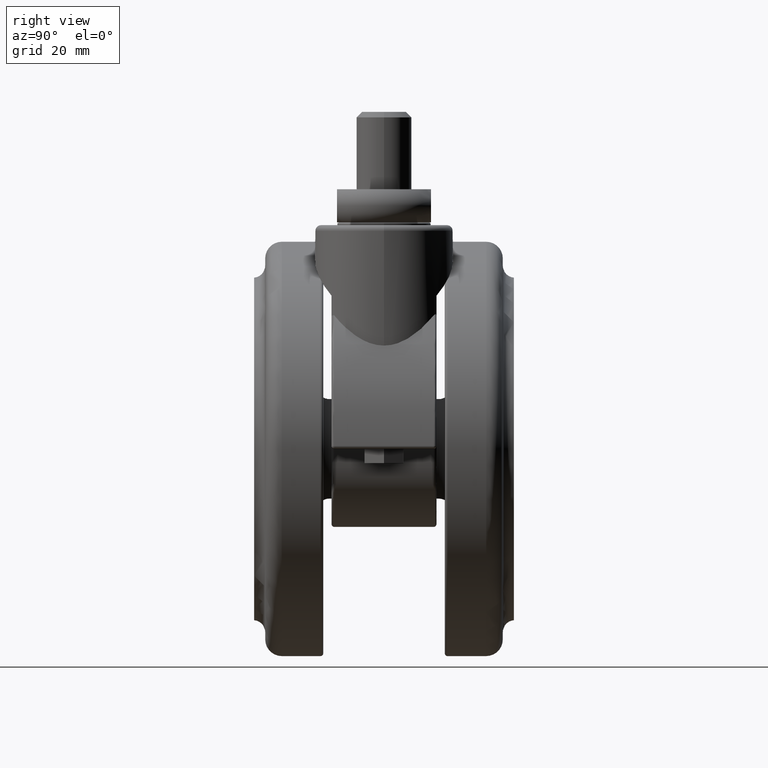
[diagram: clean part render]
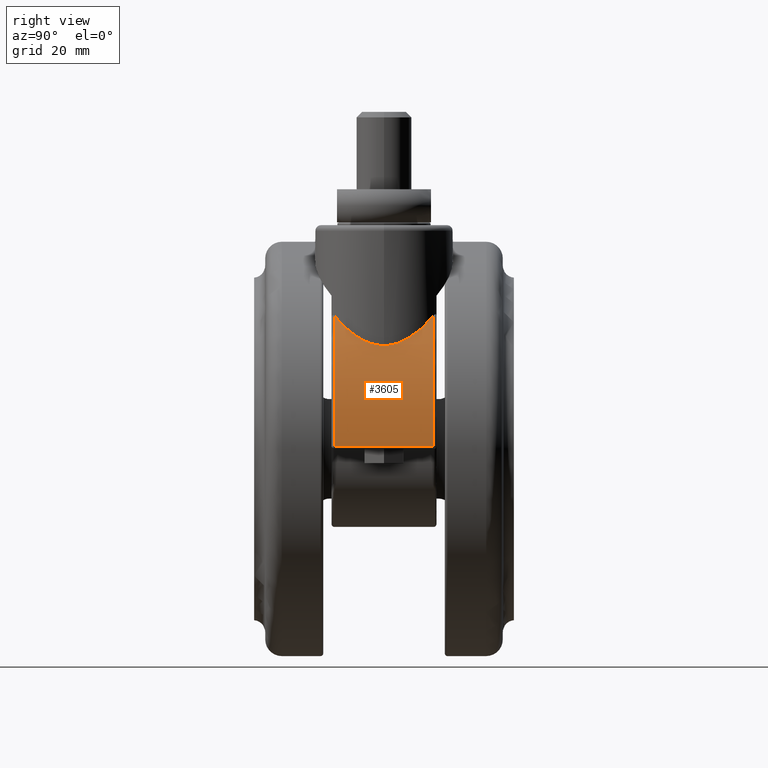
[diagram: same view with one face highlighted and labeled with its STEP entity id]
A machine part, right view. The second image highlights one B-rep face of the part: STEP entity #3605.
In plain terms, the highlighted cylindrical surface (partial cylindrical patch) has radius 37.5 mm, axis along (0, -1, 0).
Its self-contained STEP definition (entity closure, byte-faithful):
#77 = CARTESIAN_POINT ( 'NONE',  ( 12.47170636205235200, -0.9669715312654131300, -21.74232653867441600 ) ) ;
#115 = EDGE_LOOP ( 'NONE', ( #2586, #2071, #2783, #1373, #2355 ) ) ;
#127 = CARTESIAN_POINT ( 'NONE',  ( 12.06706085901649100, 3.268917303096076300, -21.05860501067672200 ) ) ;
#188 = VECTOR ( 'NONE', #1237, 1000.000000000000000 ) ;
#198 = CARTESIAN_POINT ( 'NONE',  ( -20.00000000000045100, -8.999999999999799300, -40.50000000000000000 ) ) ;
#213 = CARTESIAN_POINT ( 'NONE',  ( 12.50000000000000000, 2.842170947381347100E-014, -21.79171306613108400 ) ) ;
#316 = CARTESIAN_POINT ( 'NONE',  ( -20.00000000000045100, 0.0000000000000000000, -40.50000000000000000 ) ) ;
#321 = DIRECTION ( 'NONE',  ( 0.0000000000000000000, -1.000000000000000000, 0.0000000000000000000 ) ) ;
#435 = CARTESIAN_POINT ( 'NONE',  ( 12.27913679572494500, 2.383377241040031300, -21.41210837538315900 ) ) ;
#512 = DIRECTION ( 'NONE',  ( 0.0000000000000000000, 0.0000000000000000000, 1.000000000000000000 ) ) ;
#666 = CARTESIAN_POINT ( 'NONE',  ( 12.50000000000000500, -0.4865225008004295800, -21.79171306613108100 ) ) ;
#684 = CIRCLE ( 'NONE', #997, 37.50000000000000000 ) ;
#740 = CARTESIAN_POINT ( 'NONE',  ( 9.693335200543497600, 7.928650109869027900, -17.58469960106188900 ) ) ;
#754 = CARTESIAN_POINT ( 'NONE',  ( 12.44270331392383300, 1.218844239083871800, -21.69244763117875200 ) ) ;
#997 = AXIS2_PLACEMENT_3D ( 'NONE', #3694, #321, #1856 ) ;
#1044 = EDGE_CURVE ( 'NONE', #1609, #2469, #2871, .T. ) ;
#1047 = CARTESIAN_POINT ( 'NONE',  ( 10.56919829323567600, 6.685521131039008600, -18.77683862324972400 ) ) ;
#1058 = CARTESIAN_POINT ( 'NONE',  ( 12.49275083293316000, 0.4908738781111888800, -21.77910337829950300 ) ) ;
#1152 = CIRCLE ( 'NONE', #1523, 37.50000000000000000 ) ;
#1225 = CARTESIAN_POINT ( 'NONE',  ( 17.49657581152500200, 0.0000000000000000000, -39.99324324324324900 ) ) ;
#1237 = DIRECTION ( 'NONE',  ( -0.0000000000000000000, 1.000000000000000000, -0.0000000000000000000 ) ) ;
#1248 = CARTESIAN_POINT ( 'NONE',  ( 9.688413340939423100, -7.907281397438835800, -17.58700524540147500 ) ) ;
#1345 = CARTESIAN_POINT ( 'NONE',  ( 11.15680287006490600, 5.652002966968137100, -19.62887929108427400 ) ) ;
#1357 = CARTESIAN_POINT ( 'NONE',  ( 12.50000000000000000, 2.842170947381347100E-014, -21.79171306613108400 ) ) ;
#1373 = ORIENTED_EDGE ( 'NONE', *, *, #1044, .T. ) ;
#1523 = AXIS2_PLACEMENT_3D ( 'NONE', #198, #2330, #512 ) ;
#1609 = VERTEX_POINT ( 'NONE', #213 ) ;
#1649 = CARTESIAN_POINT ( 'NONE',  ( 11.66310253438532000, 4.517558238409294300, -20.40597867463136700 ) ) ;
#1709 = EDGE_CURVE ( 'NONE', #3878, #1933, #684, .T. ) ;
#1856 = DIRECTION ( 'NONE',  ( 0.0000000000000000000, 0.0000000000000000000, -1.000000000000000000 ) ) ;
#1903 = CARTESIAN_POINT ( 'NONE',  ( 8.941298948947228100, -8.743014500907511500, -16.65000234050980800 ) ) ;
#1933 = VERTEX_POINT ( 'NONE', #2515 ) ;
#1937 = CARTESIAN_POINT ( 'NONE',  ( 8.674675786448510500, 9.000000000000248700, -16.33363973325659700 ) ) ;
#1952 = CARTESIAN_POINT ( 'NONE',  ( 11.94271927923521800, 3.697463228630165000, -20.85497731447666000 ) ) ;
#2071 = ORIENTED_EDGE ( 'NONE', *, *, #1709, .T. ) ;
#2124 = CARTESIAN_POINT ( 'NONE',  ( 9.197291858723501100, -8.473504270880711800, -16.96438096324535000 ) ) ;
#2198 = EDGE_CURVE ( 'NONE', #3486, #3878, #3450, .T. ) ;
#2217 = AXIS2_PLACEMENT_3D ( 'NONE', #316, #3084, #3383 ) ;
#2250 = CARTESIAN_POINT ( 'NONE',  ( 9.206450369600597500, 8.487447544409350900, -16.96461864754277800 ) ) ;
#2263 = CARTESIAN_POINT ( 'NONE',  ( 12.12451971149622700, 3.049252965210984100, -21.15380391283007100 ) ) ;
#2330 = DIRECTION ( 'NONE',  ( 0.0000000000000000000, 1.000000000000000000, 0.0000000000000000000 ) ) ;
#2353 = CARTESIAN_POINT ( 'NONE',  ( 17.49657581152500200, -8.999999999999799300, -39.99324324324324900 ) ) ;
#2355 = ORIENTED_EDGE ( 'NONE', *, *, #3877, .T. ) ;
#2445 = B_SPLINE_CURVE_WITH_KNOTS ( 'NONE', 3,
 ( #1937, #2250, #740, #2866, #1047, #3187, #1345, #3483, #1649, #3782, #1952, #127, #2263, #435, #2561, #754, #2880, #1058, #3197, #1357 ),
 .UNSPECIFIED., .F., .F.,
 ( 4, 2, 2, 2, 2, 2, 2, 2, 2, 4 ),
 ( 0.0009714856032566487500, 0.003867464265470756600, 0.005315453596577811000, 0.006763442927684866100, 0.008211432258791921300, 0.008935426924345448900, 0.009659421589898974800, 0.01110741092100602800, 0.01183140558655955600, 0.01255540025211308200 ),
 .UNSPECIFIED. ) ;
#2469 = VERTEX_POINT ( 'NONE', #2851 ) ;
#2515 = CARTESIAN_POINT ( 'NONE',  ( 8.674675786448510500, 9.000000000000248700, -16.33363973325659700 ) ) ;
#2561 = CARTESIAN_POINT ( 'NONE',  ( 12.35974885479327400, 1.926758001502098000, -21.54983504716260300 ) ) ;
#2577 = CARTESIAN_POINT ( 'NONE',  ( 12.50000000000000000, 2.842170947381347100E-014, -21.79171306613108400 ) ) ;
#2586 = ORIENTED_EDGE ( 'NONE', *, *, #2198, .T. ) ;
#2630 = CYLINDRICAL_SURFACE ( 'NONE', #2217, 37.50000000000000000 ) ;
#2724 = FACE_OUTER_BOUND ( 'NONE', #115, .T. ) ;
#2770 = CARTESIAN_POINT ( 'NONE',  ( 12.38900350066858600, -1.679200893670900900, -21.60012012816156700 ) ) ;
#2783 = ORIENTED_EDGE ( 'NONE', *, *, #3768, .T. ) ;
#2804 = CARTESIAN_POINT ( 'NONE',  ( 12.35442703065444200, -1.916601599694575800, -21.54090227366469900 ) ) ;
#2833 = CARTESIAN_POINT ( 'NONE',  ( 11.50651783622628900, -4.900693350583635400, -20.16068890393995300 ) ) ;
#2851 = CARTESIAN_POINT ( 'NONE',  ( 8.674675786448910100, -8.999999999999799300, -16.33363973325709800 ) ) ;
#2864 = CARTESIAN_POINT ( 'NONE',  ( 10.98994516704020300, -6.011497097466171400, -19.37498481300060500 ) ) ;
#2866 = CARTESIAN_POINT ( 'NONE',  ( 10.35844093606097100, 7.006872436604090200, -18.48287369209984000 ) ) ;
#2871 = B_SPLINE_CURVE_WITH_KNOTS ( 'NONE', 3,
 ( #2577, #666, #77, #2770, #2804, #3208, #3178, #3134, #3091, #3111, #2833, #2864, #3653, #3767, #1248, #2124, #1903, #3777 ),
 .UNSPECIFIED., .F., .F.,
 ( 4, 2, 2, 2, 2, 2, 2, 2, 4 ),
 ( 0.01255540025211308200, 0.01400034690380283300, 0.01472282022964770800, 0.01544529355549258500, 0.01689024020718233500, 0.01833518685887208800, 0.02122508016225159400, 0.02267002681394134100, 0.02411497346563109100 ),
 .UNSPECIFIED. ) ;
#2880 = CARTESIAN_POINT ( 'NONE',  ( 12.46399946163665700, 0.9790290896011040200, -21.72928967869542300 ) ) ;
#3084 = DIRECTION ( 'NONE',  ( 0.0000000000000000000, -1.000000000000000000, 0.0000000000000000000 ) ) ;
#3091 = CARTESIAN_POINT ( 'NONE',  ( 11.94991352482712300, -3.692753411193124600, -20.86521642889563900 ) ) ;
#3111 = CARTESIAN_POINT ( 'NONE',  ( 11.66626554984752900, -4.509446654209954300, -20.41096502430789200 ) ) ;
#3134 = CARTESIAN_POINT ( 'NONE',  ( 12.07343163135560400, -3.269338401600459000, -21.06845382063274000 ) ) ;
#3178 = CARTESIAN_POINT ( 'NONE',  ( 12.22751789361714000, -2.605645293698246200, -21.32587443194355000 ) ) ;
#3187 = CARTESIAN_POINT ( 'NONE',  ( 10.96792339984759800, 6.009059963952805300, -19.34912898264780200 ) ) ;
#3197 = CARTESIAN_POINT ( 'NONE',  ( 12.49999999999999800, 0.2437734949172131700, -21.79171306613107400 ) ) ;
#3208 = CARTESIAN_POINT ( 'NONE',  ( 12.27365506325060300, -2.379626091649654600, -21.40373010410164100 ) ) ;
#3383 = DIRECTION ( 'NONE',  ( 0.0000000000000000000, 0.0000000000000000000, -1.000000000000000000 ) ) ;
#3450 = LINE ( 'NONE', #1225, #188 ) ;
#3483 = CARTESIAN_POINT ( 'NONE',  ( 11.50442517085767900, 4.905872940490959300, -20.15740332740079300 ) ) ;
#3486 = VERTEX_POINT ( 'NONE', #2353 ) ;
#3605 = ADVANCED_FACE ( 'NONE', ( #2724 ), #2630, .T. ) ;
#3653 = CARTESIAN_POINT ( 'NONE',  ( 10.59263897079085100, -6.680459693170797100, -18.79972038324677500 ) ) ;
#3694 = CARTESIAN_POINT ( 'NONE',  ( -20.00000000000045100, 9.000000000000199000, -40.50000000000000000 ) ) ;
#3767 = CARTESIAN_POINT ( 'NONE',  ( 9.924034544817836000, -7.609807742161496700, -17.89596097549964400 ) ) ;
#3768 = EDGE_CURVE ( 'NONE', #1933, #1609, #2445, .T. ) ;
#3777 = CARTESIAN_POINT ( 'NONE',  ( 8.674675786448910100, -8.999999999999799300, -16.33363973325709800 ) ) ;
#3782 = CARTESIAN_POINT ( 'NONE',  ( 11.87597282220153400, 3.906128878772682900, -20.74676493786170900 ) ) ;
#3845 = CARTESIAN_POINT ( 'NONE',  ( 17.49657581152500200, 9.000000000000199000, -39.99324324324324900 ) ) ;
#3877 = EDGE_CURVE ( 'NONE', #2469, #3486, #1152, .T. ) ;
#3878 = VERTEX_POINT ( 'NONE', #3845 ) ;